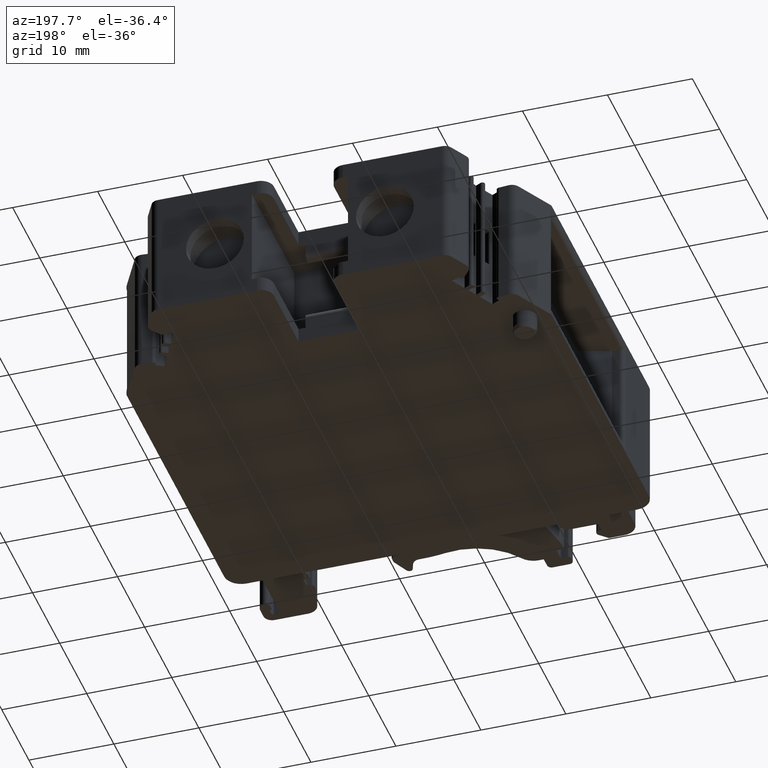
[diagram: clean part render]
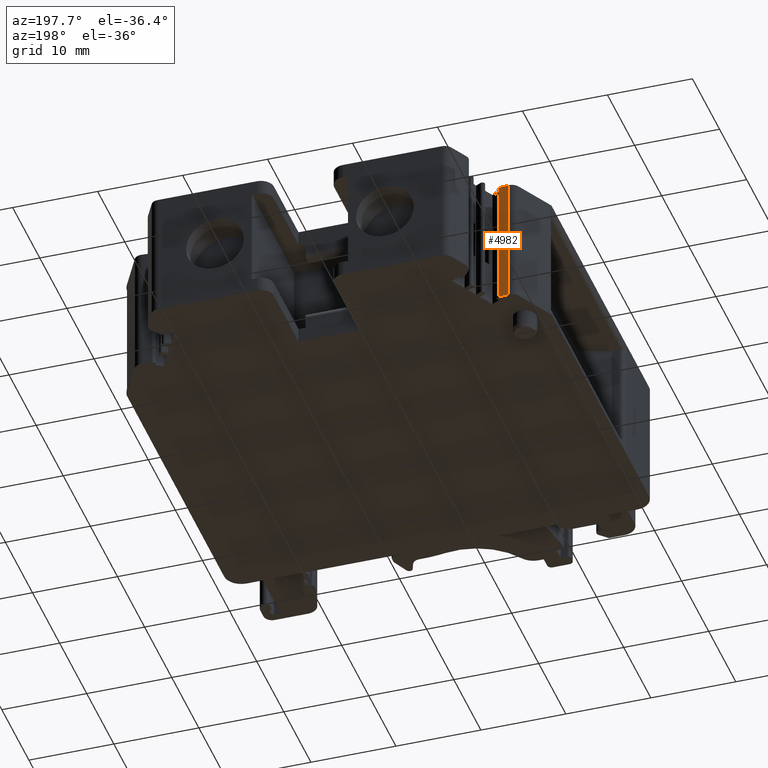
[diagram: same view with one face highlighted and labeled with its STEP entity id]
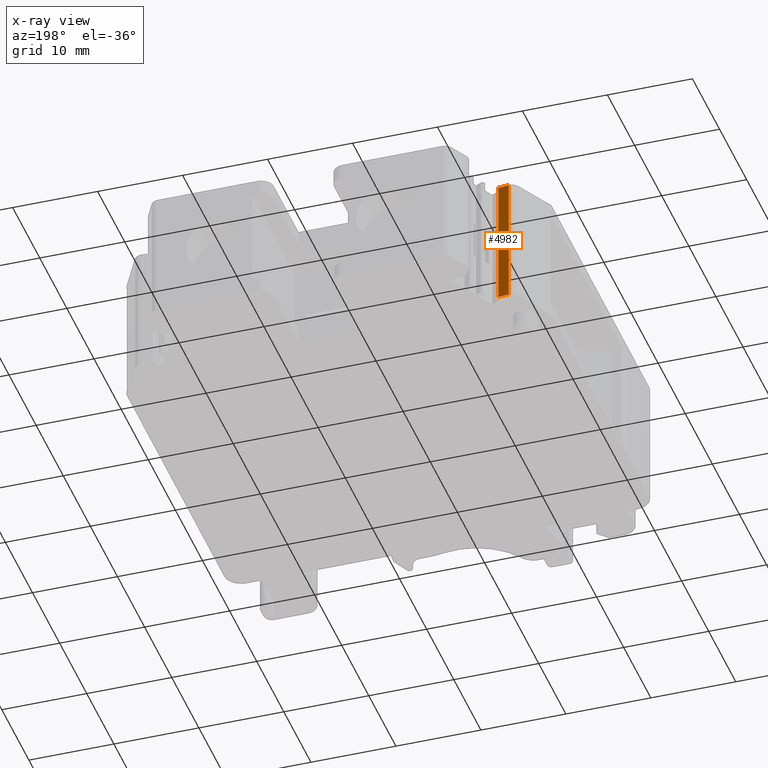
[diagram: x-ray of the same camera — body ghosted, the highlighted face saturated]
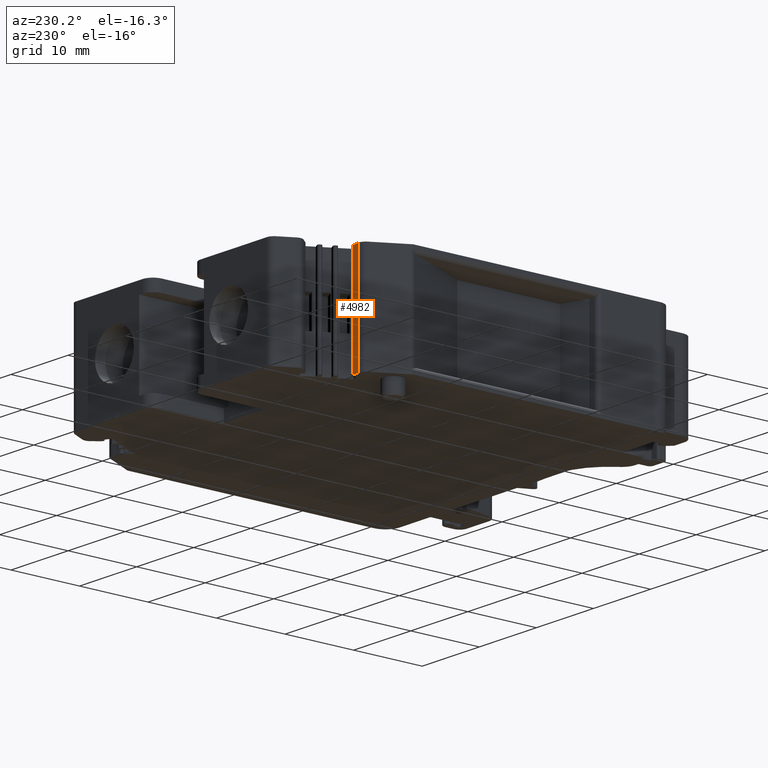
[diagram: same view with one face highlighted and labeled with its STEP entity id]
A machine part, auxiliary view. The second image highlights one B-rep face of the part: STEP entity #4982.
The next image is the same camera in x-ray: the body ghosted, the highlighted face saturated — about 0% of this face is hidden behind the body in this view.
A second angle (auxiliary view) of the same face is appended — the face is thin or edge-on in the first view.
In plain terms, the highlighted planar face has unit normal (0.0872, 0.9962, 0).
Its self-contained STEP definition (entity closure, byte-faithful):
#327=DIRECTION('',(-9.961894519058E-1,8.721568615578E-2,0.E0));
#328=VECTOR('',#327,1.239077564636E0);
#329=CARTESIAN_POINT('',(4.638822E0,4.2998839E1,-1.52E1));
#330=LINE('',#329,#328);
#627=DIRECTION('',(-4.703839656964E-14,2.150326700327E-14,1.E0));
#628=VECTOR('',#627,1.52E1);
#629=CARTESIAN_POINT('',(4.638822E0,4.2998839E1,-1.52E1));
#630=LINE('',#629,#628);
#639=DIRECTION('',(-8.594879194322E-13,3.178743817874E-14,1.E0));
#640=VECTOR('',#639,7.6E0);
#641=CARTESIAN_POINT('',(3.404466000017E0,4.3106906E1,-1.52E1));
#642=LINE('',#641,#640);
#643=DIRECTION('',(1.422312560126E-12,-9.162261592696E-14,1.E0));
#644=VECTOR('',#643,7.6E0);
#645=CARTESIAN_POINT('',(3.404466000010E0,4.3106906E1,-7.6E0));
#646=LINE('',#645,#644);
#926=DIRECTION('',(9.961894519058E-1,-8.721568615552E-2,0.E0));
#927=VECTOR('',#926,1.239077564631E0);
#928=CARTESIAN_POINT('',(3.404466000021E0,4.3106906E1,0.E0));
#929=LINE('',#928,#927);
#3308=CARTESIAN_POINT('',(3.404466000039E0,4.310690599999E1,0.E0));
#3309=VERTEX_POINT('',#3308);
#3310=CARTESIAN_POINT('',(4.638821999999E0,4.2998839E1,0.E0));
#3311=VERTEX_POINT('',#3310);
#3482=CARTESIAN_POINT('',(4.638822E0,4.2998839E1,-1.52E1));
#3483=VERTEX_POINT('',#3482);
#3484=CARTESIAN_POINT('',(3.404466000010E0,4.3106906E1,-7.6E0));
#3485=VERTEX_POINT('',#3484);
#3486=CARTESIAN_POINT('',(3.404466000017E0,4.3106906E1,-1.52E1));
#3487=VERTEX_POINT('',#3486);
#4967=CARTESIAN_POINT('',(4.021644000004E0,4.30528725E1,-7.6E0));
#4968=DIRECTION('',(8.721568615912E-2,9.961894519055E-1,0.E0));
#4969=DIRECTION('',(-9.961894519055E-1,8.721568615912E-2,0.E0));
#4970=AXIS2_PLACEMENT_3D('',#4967,#4968,#4969);
#4971=PLANE('',#4970);
#4973=ORIENTED_EDGE('',*,*,#4972,.F.);
#4975=ORIENTED_EDGE('',*,*,#4974,.F.);
#4976=ORIENTED_EDGE('',*,*,#4476,.F.);
#4977=ORIENTED_EDGE('',*,*,#4957,.T.);
#4979=ORIENTED_EDGE('',*,*,#4978,.F.);
#4980=EDGE_LOOP('',(#4973,#4975,#4976,#4977,#4979));
#4981=FACE_OUTER_BOUND('',#4980,.F.);
#4982=ADVANCED_FACE('',(#4981),#4971,.T.);
#4476=EDGE_CURVE('',#3483,#3487,#330,.T.);
#4957=EDGE_CURVE('',#3483,#3311,#630,.T.);
#4972=EDGE_CURVE('',#3485,#3309,#646,.T.);
#4974=EDGE_CURVE('',#3487,#3485,#642,.T.);
#4978=EDGE_CURVE('',#3309,#3311,#929,.T.);